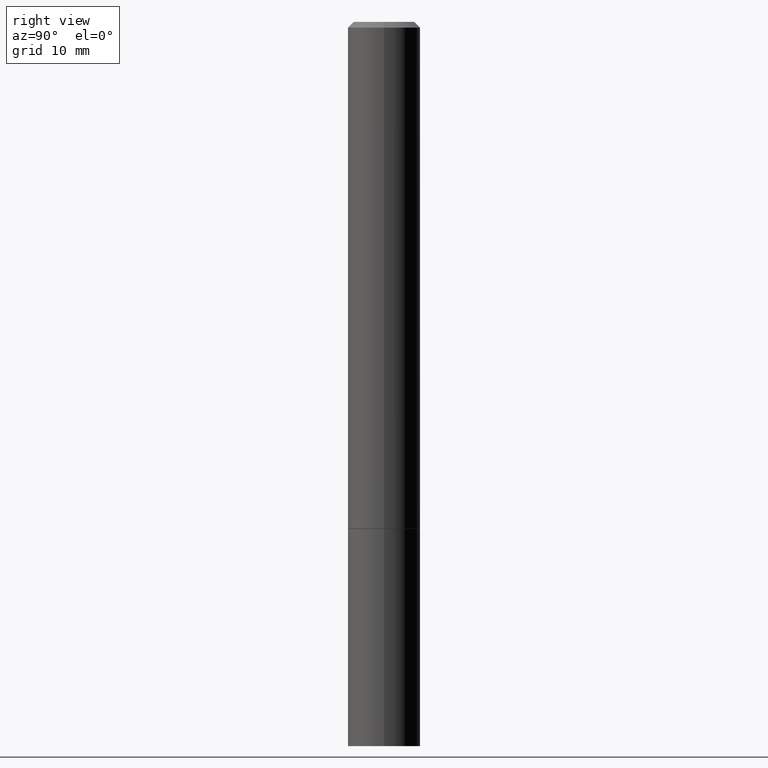
[diagram: clean part render]
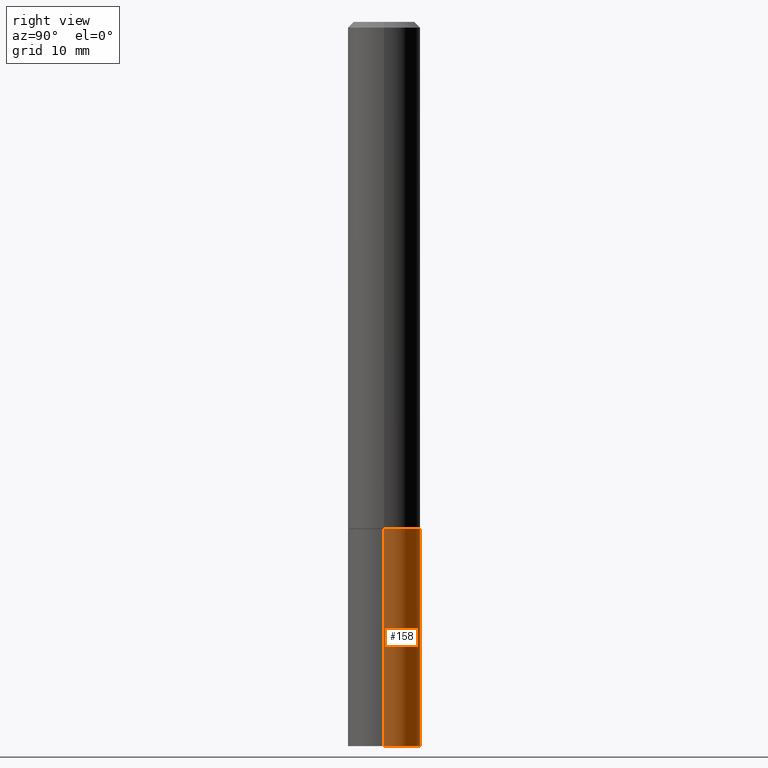
[diagram: same view with one face highlighted and labeled with its STEP entity id]
A machine part, right view. The second image highlights one B-rep face of the part: STEP entity #158.
In plain terms, the highlighted cylindrical surface (edge-blend (fillet) strip) has radius 3.175 mm, axis along (-0, 0, 1).
Its self-contained STEP definition (entity closure, byte-faithful):
#15 = ORIENTED_EDGE ( 'NONE', *, *, #143, .T. ) ;
#17 = CARTESIAN_POINT ( 'NONE',  ( 0.000000000000000000, 0.000000000000000000, 0.000000000000000000 ) ) ;
#41 = EDGE_LOOP ( 'NONE', ( #62, #15, #246, #354 ) ) ;
#42 = VERTEX_POINT ( 'NONE', #279 ) ;
#47 = CARTESIAN_POINT ( 'NONE',  ( 4.279570410823989044E-29, -6.110092342975505460E-15, -1.750000000000000222 ) ) ;
#58 = FACE_OUTER_BOUND ( 'NONE', #41, .T. ) ;
#62 = ORIENTED_EDGE ( 'NONE', *, *, #327, .T. ) ;
#84 = AXIS2_PLACEMENT_3D ( 'NONE', #17, #179, #118 ) ;
#104 = VERTEX_POINT ( 'NONE', #201 ) ;
#114 = CARTESIAN_POINT ( 'NONE',  ( 0.1250000000000000000, -9.601573681818648281E-15, -2.500000000000000000 ) ) ;
#118 = DIRECTION ( 'NONE',  ( 1.000000000000000000, -6.982962677686266711E-15, 4.876176775795935793E-29 ) ) ;
#137 = DIRECTION ( 'NONE',  ( 1.000000000000000000, -6.982962677686262766E-15, 0.000000000000000000 ) ) ;
#143 = EDGE_CURVE ( 'NONE', #42, #363, #214, .T. ) ;
#158 = ADVANCED_FACE ( 'NONE', ( #58 ), #362, .T. ) ;
#164 = CARTESIAN_POINT ( 'NONE',  ( -0.1250000000000000000, -6.531219425341559180E-15, -1.750000000000000222 ) ) ;
#176 = AXIS2_PLACEMENT_3D ( 'NONE', #47, #256, #137 ) ;
#179 = DIRECTION ( 'NONE',  ( -2.445468806185136597E-29, 3.491481338843145583E-15, 1.000000000000000000 ) ) ;
#180 = EDGE_CURVE ( 'NONE', #339, #104, #228, .T. ) ;
#191 = CIRCLE ( 'NONE', #176, 0.1250000000000000000 ) ;
#194 = DIRECTION ( 'NONE',  ( -2.445468806185136877E-29, 3.491481338843145188E-15, 1.000000000000000000 ) ) ;
#201 = CARTESIAN_POINT ( 'NONE',  ( 0.1250000000000000000, -6.982962677686288010E-15, -1.750000000000000222 ) ) ;
#204 = CARTESIAN_POINT ( 'NONE',  ( 0.1250000000000000000, -8.728703347107833388E-16, 6.095220969744919741E-30 ) ) ;
#214 = LINE ( 'NONE', #218, #255 ) ;
#218 = CARTESIAN_POINT ( 'NONE',  ( -0.1250000000000000000, 8.881784197001252323E-16, -6.148668862818632227E-30 ) ) ;
#228 = LINE ( 'NONE', #204, #326 ) ;
#236 = AXIS2_PLACEMENT_3D ( 'NONE', #317, #332, #266 ) ;
#246 = ORIENTED_EDGE ( 'NONE', *, *, #252, .F. ) ;
#252 = EDGE_CURVE ( 'NONE', #104, #363, #191, .T. ) ;
#255 = VECTOR ( 'NONE', #194, 39.37007874015748143 ) ;
#256 = DIRECTION ( 'NONE',  ( -2.445468806185136597E-29, 3.491481338843145583E-15, 1.000000000000000000 ) ) ;
#266 = DIRECTION ( 'NONE',  ( 1.000000000000000000, -6.982962677686270655E-15, 0.000000000000000000 ) ) ;
#279 = CARTESIAN_POINT ( 'NONE',  ( -0.1250000000000000000, -6.531219425341559180E-15, -2.500000000000000000 ) ) ;
#315 = DIRECTION ( 'NONE',  ( -2.445468806185136877E-29, 3.491481338843145188E-15, 1.000000000000000000 ) ) ;
#316 = CIRCLE ( 'NONE', #236, 0.1250000000000000000 ) ;
#317 = CARTESIAN_POINT ( 'NONE',  ( 6.113672015462842613E-29, -8.728703347107864943E-15, -2.500000000000000000 ) ) ;
#326 = VECTOR ( 'NONE', #315, 39.37007874015748143 ) ;
#327 = EDGE_CURVE ( 'NONE', #339, #42, #316, .T. ) ;
#332 = DIRECTION ( 'NONE',  ( -2.445468806185136597E-29, 3.491481338843145583E-15, 1.000000000000000000 ) ) ;
#339 = VERTEX_POINT ( 'NONE', #114 ) ;
#354 = ORIENTED_EDGE ( 'NONE', *, *, #180, .F. ) ;
#362 = CYLINDRICAL_SURFACE ( 'NONE', #84, 0.1250000000000000000 ) ;
#363 = VERTEX_POINT ( 'NONE', #164 ) ;